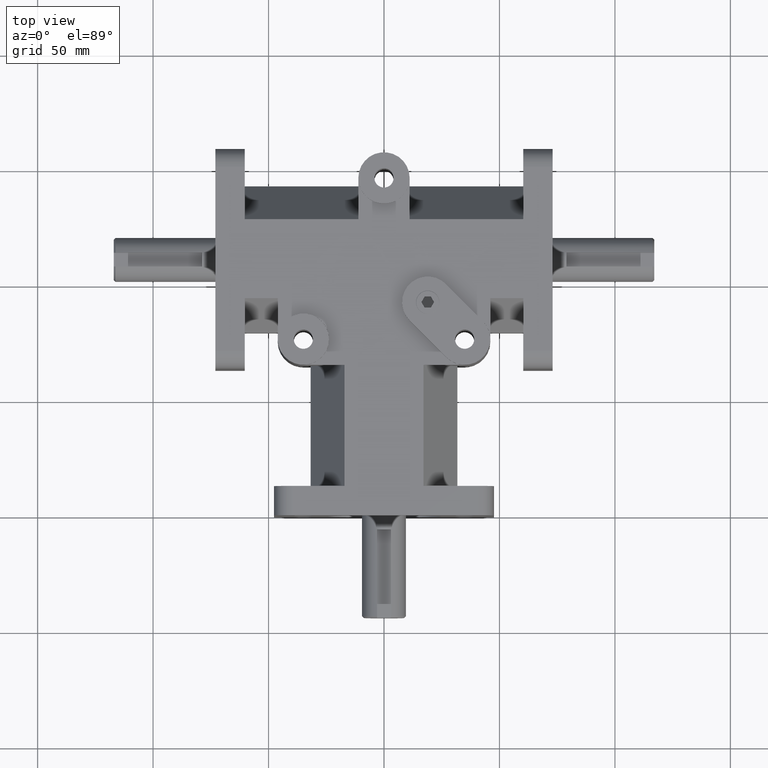
[diagram: clean part render]
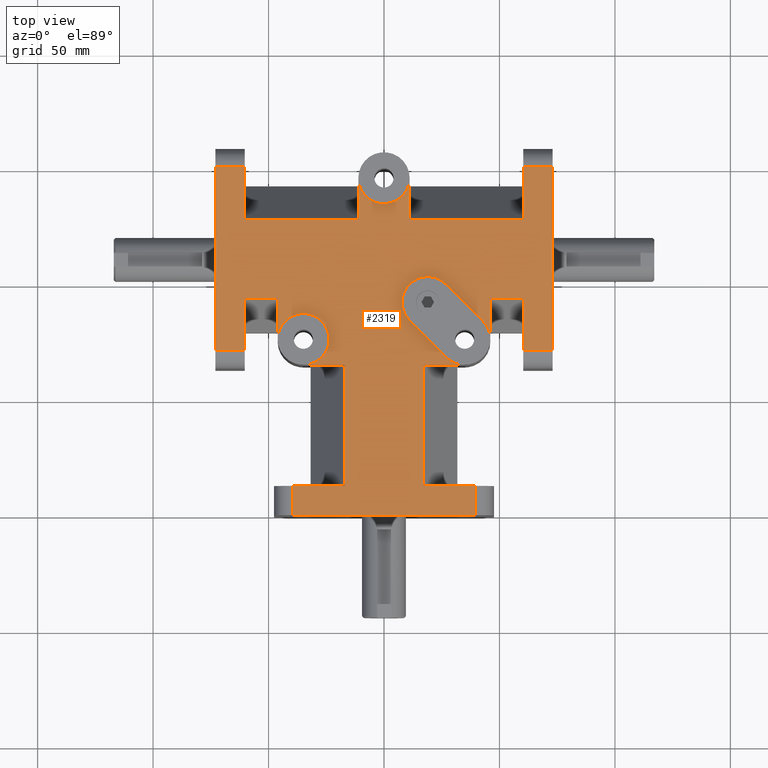
[diagram: same view with one face highlighted and labeled with its STEP entity id]
A machine part, top view. The second image highlights one B-rep face of the part: STEP entity #2319.
In plain terms, the highlighted planar face has unit normal (0, 0, 1).
Its self-contained STEP definition (entity closure, byte-faithful):
#92=PLANE('',#2533);
#200=FACE_OUTER_BOUND('',#349,.T.);
#349=EDGE_LOOP('',(#1832,#1833,#1834,#1835,#1836,#1837,#1838,#1839,#1840,
#1841,#1842,#1843,#1844,#1845,#1846,#1847,#1848,#1849,#1850,#1851,#1852,
#1853,#1854,#1855,#1856,#1857,#1858,#1859,#1860,#1861,#1862,#1863,#1864,
#1865));
#497=LINE('',#3539,#719);
#498=LINE('',#3545,#720);
#503=LINE('',#3566,#725);
#508=LINE('',#3590,#730);
#513=LINE('',#3611,#735);
#516=LINE('',#3626,#738);
#522=LINE('',#3639,#744);
#524=LINE('',#3647,#746);
#530=LINE('',#3661,#752);
#538=LINE('',#3682,#760);
#557=LINE('',#3728,#779);
#558=LINE('',#3730,#780);
#559=LINE('',#3734,#781);
#560=LINE('',#3736,#782);
#561=LINE('',#3737,#783);
#562=LINE('',#3738,#784);
#563=LINE('',#3740,#785);
#564=LINE('',#3742,#786);
#565=LINE('',#3746,#787);
#566=LINE('',#3748,#788);
#567=LINE('',#3749,#789);
#568=LINE('',#3751,#790);
#569=LINE('',#3753,#791);
#570=LINE('',#3755,#792);
#571=LINE('',#3759,#793);
#572=LINE('',#3763,#794);
#573=LINE('',#3767,#795);
#574=LINE('',#3768,#796);
#575=LINE('',#3769,#797);
#719=VECTOR('',#2838,1.);
#720=VECTOR('',#2843,1.);
#725=VECTOR('',#2862,1.);
#730=VECTOR('',#2883,1.);
#735=VECTOR('',#2902,1.);
#738=VECTOR('',#2915,1.);
#744=VECTOR('',#2925,1.);
#746=VECTOR('',#2933,1.);
#752=VECTOR('',#2945,1.);
#760=VECTOR('',#2963,1.);
#779=VECTOR('',#2998,1.);
#780=VECTOR('',#2999,1.);
#781=VECTOR('',#3002,1.);
#782=VECTOR('',#3003,1.);
#783=VECTOR('',#3004,1.);
#784=VECTOR('',#3005,1.);
#785=VECTOR('',#3006,1.);
#786=VECTOR('',#3007,1.);
#787=VECTOR('',#3010,1.);
#788=VECTOR('',#3011,1.);
#789=VECTOR('',#3012,1.);
#790=VECTOR('',#3013,1.);
#791=VECTOR('',#3014,1.);
#792=VECTOR('',#3015,1.);
#793=VECTOR('',#3018,1.);
#794=VECTOR('',#3021,1.);
#795=VECTOR('',#3024,1.);
#796=VECTOR('',#3025,1.);
#797=VECTOR('',#3026,1.);
#967=CIRCLE('',#2534,11.1125);
#968=CIRCLE('',#2535,11.1125);
#969=CIRCLE('',#2536,11.1125);
#970=CIRCLE('',#2537,11.1125);
#971=CIRCLE('',#2538,11.1125);
#1060=VERTEX_POINT('',#3532);
#1063=VERTEX_POINT('',#3537);
#1065=VERTEX_POINT('',#3542);
#1066=VERTEX_POINT('',#3544);
#1072=VERTEX_POINT('',#3559);
#1075=VERTEX_POINT('',#3564);
#1085=VERTEX_POINT('',#3587);
#1086=VERTEX_POINT('',#3589);
#1092=VERTEX_POINT('',#3604);
#1095=VERTEX_POINT('',#3609);
#1101=VERTEX_POINT('',#3623);
#1102=VERTEX_POINT('',#3625);
#1107=VERTEX_POINT('',#3637);
#1110=VERTEX_POINT('',#3646);
#1123=VERTEX_POINT('',#3680);
#1142=VERTEX_POINT('',#3727);
#1143=VERTEX_POINT('',#3729);
#1144=VERTEX_POINT('',#3731);
#1145=VERTEX_POINT('',#3733);
#1146=VERTEX_POINT('',#3735);
#1147=VERTEX_POINT('',#3739);
#1148=VERTEX_POINT('',#3741);
#1149=VERTEX_POINT('',#3743);
#1150=VERTEX_POINT('',#3745);
#1151=VERTEX_POINT('',#3747);
#1152=VERTEX_POINT('',#3750);
#1153=VERTEX_POINT('',#3752);
#1154=VERTEX_POINT('',#3754);
#1155=VERTEX_POINT('',#3756);
#1156=VERTEX_POINT('',#3758);
#1157=VERTEX_POINT('',#3760);
#1158=VERTEX_POINT('',#3762);
#1159=VERTEX_POINT('',#3764);
#1160=VERTEX_POINT('',#3766);
#1311=EDGE_CURVE('',#1063,#1060,#497,.T.);
#1313=EDGE_CURVE('',#1065,#1066,#498,.T.);
#1323=EDGE_CURVE('',#1075,#1072,#503,.T.);
#1333=EDGE_CURVE('',#1085,#1086,#508,.T.);
#1343=EDGE_CURVE('',#1095,#1092,#513,.T.);
#1349=EDGE_CURVE('',#1101,#1102,#516,.T.);
#1356=EDGE_CURVE('',#1107,#1063,#522,.T.);
#1360=EDGE_CURVE('',#1066,#1110,#524,.T.);
#1368=EDGE_CURVE('',#1072,#1085,#530,.T.);
#1380=EDGE_CURVE('',#1123,#1095,#538,.T.);
#1405=EDGE_CURVE('',#1142,#1107,#557,.T.);
#1406=EDGE_CURVE('',#1143,#1142,#558,.T.);
#1407=EDGE_CURVE('',#1143,#1144,#967,.T.);
#1408=EDGE_CURVE('',#1145,#1144,#559,.T.);
#1409=EDGE_CURVE('',#1146,#1145,#560,.T.);
#1410=EDGE_CURVE('',#1102,#1146,#561,.T.);
#1411=EDGE_CURVE('',#1092,#1101,#562,.T.);
#1412=EDGE_CURVE('',#1147,#1123,#563,.T.);
#1413=EDGE_CURVE('',#1148,#1147,#564,.T.);
#1414=EDGE_CURVE('',#1148,#1149,#968,.T.);
#1415=EDGE_CURVE('',#1150,#1149,#565,.T.);
#1416=EDGE_CURVE('',#1151,#1150,#566,.T.);
#1417=EDGE_CURVE('',#1086,#1151,#567,.T.);
#1418=EDGE_CURVE('',#1152,#1075,#568,.T.);
#1419=EDGE_CURVE('',#1153,#1152,#569,.T.);
#1420=EDGE_CURVE('',#1154,#1153,#570,.T.);
#1421=EDGE_CURVE('',#1154,#1155,#969,.T.);
#1422=EDGE_CURVE('',#1155,#1156,#571,.T.);
#1423=EDGE_CURVE('',#1156,#1157,#970,.T.);
#1424=EDGE_CURVE('',#1157,#1158,#572,.T.);
#1425=EDGE_CURVE('',#1158,#1159,#971,.T.);
#1426=EDGE_CURVE('',#1160,#1159,#573,.T.);
#1427=EDGE_CURVE('',#1110,#1160,#574,.T.);
#1428=EDGE_CURVE('',#1060,#1065,#575,.T.);
#1832=ORIENTED_EDGE('',*,*,#1311,.F.);
#1833=ORIENTED_EDGE('',*,*,#1356,.F.);
#1834=ORIENTED_EDGE('',*,*,#1405,.F.);
#1835=ORIENTED_EDGE('',*,*,#1406,.F.);
#1836=ORIENTED_EDGE('',*,*,#1407,.T.);
#1837=ORIENTED_EDGE('',*,*,#1408,.F.);
#1838=ORIENTED_EDGE('',*,*,#1409,.F.);
#1839=ORIENTED_EDGE('',*,*,#1410,.F.);
#1840=ORIENTED_EDGE('',*,*,#1349,.F.);
#1841=ORIENTED_EDGE('',*,*,#1411,.F.);
#1842=ORIENTED_EDGE('',*,*,#1343,.F.);
#1843=ORIENTED_EDGE('',*,*,#1380,.F.);
#1844=ORIENTED_EDGE('',*,*,#1412,.F.);
#1845=ORIENTED_EDGE('',*,*,#1413,.F.);
#1846=ORIENTED_EDGE('',*,*,#1414,.T.);
#1847=ORIENTED_EDGE('',*,*,#1415,.F.);
#1848=ORIENTED_EDGE('',*,*,#1416,.F.);
#1849=ORIENTED_EDGE('',*,*,#1417,.F.);
#1850=ORIENTED_EDGE('',*,*,#1333,.F.);
#1851=ORIENTED_EDGE('',*,*,#1368,.F.);
#1852=ORIENTED_EDGE('',*,*,#1323,.F.);
#1853=ORIENTED_EDGE('',*,*,#1418,.F.);
#1854=ORIENTED_EDGE('',*,*,#1419,.F.);
#1855=ORIENTED_EDGE('',*,*,#1420,.F.);
#1856=ORIENTED_EDGE('',*,*,#1421,.T.);
#1857=ORIENTED_EDGE('',*,*,#1422,.T.);
#1858=ORIENTED_EDGE('',*,*,#1423,.T.);
#1859=ORIENTED_EDGE('',*,*,#1424,.T.);
#1860=ORIENTED_EDGE('',*,*,#1425,.T.);
#1861=ORIENTED_EDGE('',*,*,#1426,.F.);
#1862=ORIENTED_EDGE('',*,*,#1427,.F.);
#1863=ORIENTED_EDGE('',*,*,#1360,.F.);
#1864=ORIENTED_EDGE('',*,*,#1313,.F.);
#1865=ORIENTED_EDGE('',*,*,#1428,.F.);
#2319=ADVANCED_FACE('',(#200),#92,.T.);
#2533=AXIS2_PLACEMENT_3D('',#3726,#2996,#2997);
#2534=AXIS2_PLACEMENT_3D('',#3732,#3000,#3001);
#2535=AXIS2_PLACEMENT_3D('',#3744,#3008,#3009);
#2536=AXIS2_PLACEMENT_3D('',#3757,#3016,#3017);
#2537=AXIS2_PLACEMENT_3D('',#3761,#3019,#3020);
#2538=AXIS2_PLACEMENT_3D('',#3765,#3022,#3023);
#2838=DIRECTION('',(1.,0.,0.));
#2843=DIRECTION('',(-1.,0.,0.));
#2862=DIRECTION('',(0.,-1.,0.));
#2883=DIRECTION('',(0.,1.,0.));
#2902=DIRECTION('',(-1.,0.,0.));
#2915=DIRECTION('',(1.,0.,0.));
#2925=DIRECTION('',(0.,1.,0.));
#2933=DIRECTION('',(0.,1.,0.));
#2945=DIRECTION('',(-1.,0.,0.));
#2963=DIRECTION('',(0.,-1.,0.));
#2996=DIRECTION('center_axis',(0.,0.,1.));
#2997=DIRECTION('ref_axis',(-1.,0.,0.));
#2998=DIRECTION('',(1.,0.,0.));
#2999=DIRECTION('',(0.,-1.,0.));
#3000=DIRECTION('center_axis',(0.,0.,-1.));
#3001=DIRECTION('ref_axis',(1.,0.,0.));
#3002=DIRECTION('',(0.,1.,0.));
#3003=DIRECTION('',(1.,0.,0.));
#3004=DIRECTION('',(0.,-1.,0.));
#3005=DIRECTION('',(0.,1.,0.));
#3006=DIRECTION('',(-1.,0.,0.));
#3007=DIRECTION('',(0.,1.,0.));
#3008=DIRECTION('center_axis',(0.,0.,-1.));
#3009=DIRECTION('ref_axis',(1.,0.,0.));
#3010=DIRECTION('',(-1.,0.,0.));
#3011=DIRECTION('',(0.,1.,0.));
#3012=DIRECTION('',(1.,0.,0.));
#3013=DIRECTION('',(1.,0.,0.));
#3014=DIRECTION('',(0.,-1.,0.));
#3015=DIRECTION('',(-1.,0.,0.));
#3016=DIRECTION('center_axis',(0.,0.,-1.));
#3017=DIRECTION('ref_axis',(1.,0.,0.));
#3018=DIRECTION('',(-0.707106781186547,0.707106781186548,0.));
#3019=DIRECTION('center_axis',(0.,0.,-1.));
#3020=DIRECTION('ref_axis',(1.,0.,0.));
#3021=DIRECTION('',(0.707106781186547,-0.707106781186548,0.));
#3022=DIRECTION('center_axis',(0.,0.,-1.));
#3023=DIRECTION('ref_axis',(1.,0.,0.));
#3024=DIRECTION('',(0.,-1.,0.));
#3025=DIRECTION('',(-1.,0.,0.));
#3026=DIRECTION('',(0.,-1.,0.));
#3532=CARTESIAN_POINT('',(73.025,150.876,31.75));
#3537=CARTESIAN_POINT('',(60.325,150.876,31.75));
#3539=CARTESIAN_POINT('',(36.5125,150.876,31.75));
#3542=CARTESIAN_POINT('',(73.025,71.374,31.75));
#3544=CARTESIAN_POINT('',(60.325,71.374,31.75));
#3545=CARTESIAN_POINT('',(30.1625,71.374,31.75));
#3559=CARTESIAN_POINT('',(39.751,0.,31.75));
#3564=CARTESIAN_POINT('',(39.751,12.7,31.75));
#3566=CARTESIAN_POINT('',(39.751,41.3999528726981,31.75));
#3587=CARTESIAN_POINT('',(-39.751,0.,31.75));
#3589=CARTESIAN_POINT('',(-39.751,12.7,31.75));
#3590=CARTESIAN_POINT('',(-39.751,47.7499528726981,31.75));
#3604=CARTESIAN_POINT('',(-73.025,71.374,31.75));
#3609=CARTESIAN_POINT('',(-60.325,71.374,31.75));
#3611=CARTESIAN_POINT('',(-36.5125,71.374,31.75));
#3623=CARTESIAN_POINT('',(-73.025,150.876,31.75));
#3625=CARTESIAN_POINT('',(-60.325,150.876,31.75));
#3626=CARTESIAN_POINT('',(-30.1625,150.876,31.75));
#3637=CARTESIAN_POINT('',(60.325,128.21031,31.75));
#3639=CARTESIAN_POINT('',(60.325,142.875,31.75));
#3646=CARTESIAN_POINT('',(60.325,94.03969,31.75));
#3647=CARTESIAN_POINT('',(60.325,81.0874528726981,31.75));
#3661=CARTESIAN_POINT('',(-47.625,0.,31.75));
#3680=CARTESIAN_POINT('',(-60.325,94.03969,31.75));
#3682=CARTESIAN_POINT('',(-60.325,63.5,31.75));
#3726=CARTESIAN_POINT('Origin',(5.9538745461607E-15,82.7999057453963,31.75));
#3727=CARTESIAN_POINT('',(11.1125,128.21031,31.75));
#3728=CARTESIAN_POINT('',(30.1625,128.21031,31.75));
#3729=CARTESIAN_POINT('',(11.1125,146.05,31.75));
#3730=CARTESIAN_POINT('',(11.1125,112.837452872698,31.75));
#3731=CARTESIAN_POINT('',(-11.1125,146.05,31.75));
#3732=CARTESIAN_POINT('Origin',(0.,146.05,31.75));
#3733=CARTESIAN_POINT('',(-11.1125,128.21031,31.75));
#3734=CARTESIAN_POINT('',(-11.1125,142.875,31.75));
#3735=CARTESIAN_POINT('',(-60.325,128.21031,31.75));
#3736=CARTESIAN_POINT('',(-5.55625,128.21031,31.75));
#3737=CARTESIAN_POINT('',(-60.325,112.837452872698,31.75));
#3738=CARTESIAN_POINT('',(-73.025,63.5,31.75));
#3739=CARTESIAN_POINT('',(-46.0375,94.03969,31.75));
#3740=CARTESIAN_POINT('',(-30.1625,94.03969,31.75));
#3741=CARTESIAN_POINT('',(-46.0375,76.2,31.75));
#3742=CARTESIAN_POINT('',(-46.0375,81.0874528726981,31.75));
#3743=CARTESIAN_POINT('',(-34.925,65.0875,31.75));
#3744=CARTESIAN_POINT('Origin',(-34.925,76.2,31.75));
#3745=CARTESIAN_POINT('',(-17.08531,65.0875,31.75));
#3746=CARTESIAN_POINT('',(-31.75,65.0875,31.75));
#3747=CARTESIAN_POINT('',(-17.08531,12.7,31.75));
#3748=CARTESIAN_POINT('',(-17.08531,73.9437028726981,31.75));
#3749=CARTESIAN_POINT('',(-15.875,12.7,31.75));
#3750=CARTESIAN_POINT('',(17.08531,12.7,31.75));
#3751=CARTESIAN_POINT('',(31.75,12.7,31.75));
#3752=CARTESIAN_POINT('',(17.08531,65.0875,31.75));
#3753=CARTESIAN_POINT('',(17.08531,47.7499528726981,31.75));
#3754=CARTESIAN_POINT('',(34.925,65.0875,31.75));
#3755=CARTESIAN_POINT('',(15.875,65.0875,31.75));
#3756=CARTESIAN_POINT('',(27.0672758940645,68.3422758940645,31.75));
#3757=CARTESIAN_POINT('Origin',(34.925,76.2,31.75));
#3758=CARTESIAN_POINT('',(11.0652758940645,84.3442758940645,31.75));
#3759=CARTESIAN_POINT('',(16.6860494577154,78.7235023304136,31.75));
#3760=CARTESIAN_POINT('',(26.7807241059355,100.059724105936,31.75));
#3761=CARTESIAN_POINT('Origin',(18.923,92.202,31.75));
#3762=CARTESIAN_POINT('',(42.7827241059355,84.0577241059355,31.75));
#3763=CARTESIAN_POINT('',(24.4004976695865,102.439950542285,31.75));
#3764=CARTESIAN_POINT('',(46.0375,76.1999999999999,31.75));
#3765=CARTESIAN_POINT('Origin',(34.925,76.2,31.75));
#3766=CARTESIAN_POINT('',(46.0375,94.03969,31.75));
#3767=CARTESIAN_POINT('',(46.0375,76.2,31.75));
#3768=CARTESIAN_POINT('',(23.01875,94.03969,31.75));
#3769=CARTESIAN_POINT('',(73.025,63.5,31.75));